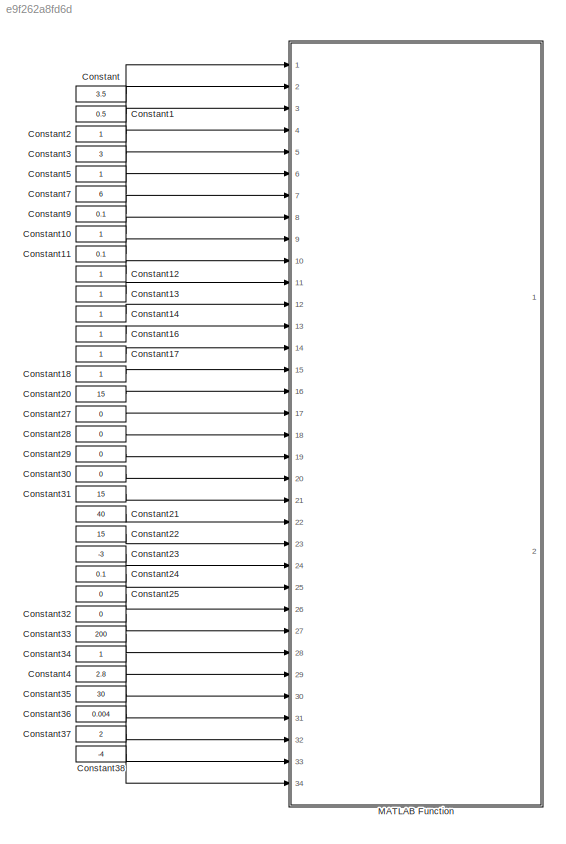
MODEL slx_e9f262a8fd6d
KIND model
CONFIG AbsTol = auto
CONFIG EnableMultiTasking = off
CONFIG FixedStep = 0.01
CONFIG MaxStep = auto
CONFIG MinStep = auto
CONFIG RelTol = 1e-3
CONFIG SampleTimeConstraint = Unconstrained
CONFIG Solver = FixedStepAuto
CONFIG SolverName = FixedStepAuto
CONFIG StartTime = 0.0
CONFIG StopTime = 10.0
BLOCK [Constant] Constant
  Value = 3.5
BLOCK [Constant] Constant1
  Value = 0.5
BLOCK [Constant] Constant10
BLOCK [Constant] Constant11
  Value = 0.1
BLOCK [Constant] Constant12
BLOCK [Constant] Constant13
BLOCK [Constant] Constant14
BLOCK [Constant] Constant16
BLOCK [Constant] Constant17
BLOCK [Constant] Constant18
BLOCK [Constant] Constant2
BLOCK [Constant] Constant20
  Value = 15
BLOCK [Constant] Constant21
  Value = 40
BLOCK [Constant] Constant22
  Value = 15
BLOCK [Constant] Constant23
  Value = -3
BLOCK [Constant] Constant24
  Value = 0.1
BLOCK [Constant] Constant25
  Value = 0
BLOCK [Constant] Constant27
  Value = 0
BLOCK [Constant] Constant28
  Value = 0
BLOCK [Constant] Constant29
  Value = 0
BLOCK [Constant] Constant3
  Value = 3
BLOCK [Constant] Constant30
  Value = 0
BLOCK [Constant] Constant31
  Value = 15
BLOCK [Constant] Constant32
  Value = 0
BLOCK [Constant] Constant33
  Value = 200
BLOCK [Constant] Constant34
BLOCK [Constant] Constant35
  Value = 30
BLOCK [Constant] Constant36
  Value = 0.004
BLOCK [Constant] Constant37
  Value = 2
BLOCK [Constant] Constant38
  Value = -4
BLOCK [Constant] Constant4
  Value = 2.8
BLOCK [Constant] Constant5
BLOCK [Constant] Constant7
  Value = 6
BLOCK [Constant] Constant9
  Value = 0.1
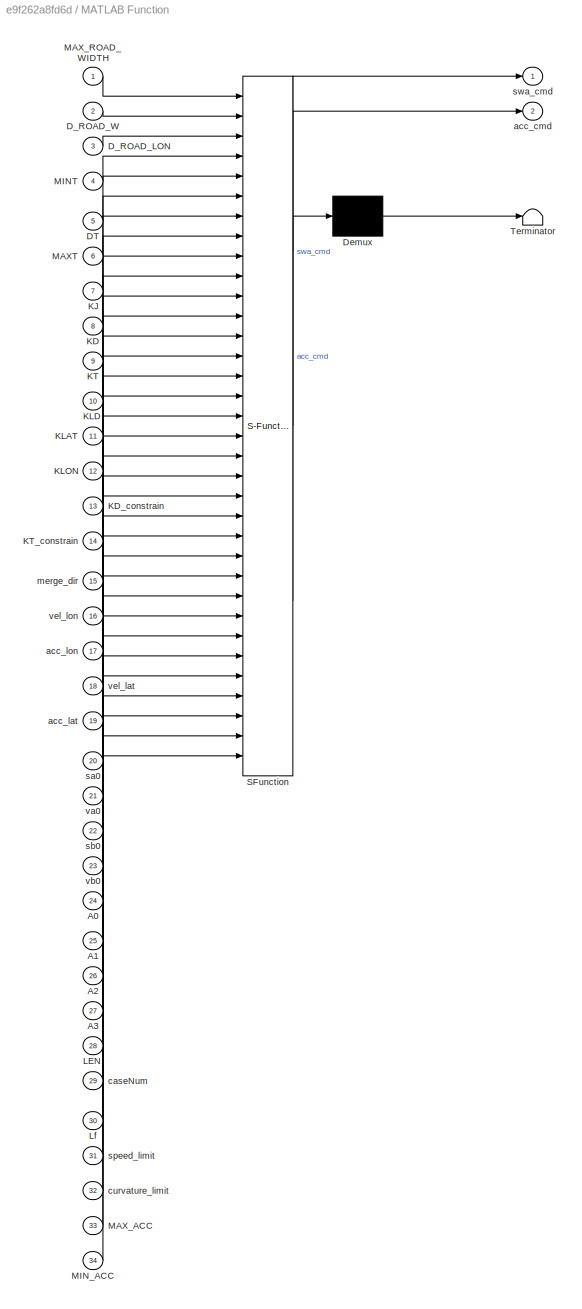
BLOCK [SubSystem] MATLAB Function
  ErrorFcn = Stateflow.Translate.translate
  PermitHierarchicalResolution = ExplicitOnly
  Ports = [34, 2]
  RequestExecContextInheritance = off
  SFBlockType = MATLAB Function
  TreatAsAtomicUnit = on
BLOCK [Demux] MATLAB Function/ Demux 
  Outputs = 1
  Ports = [1, 1]
BLOCK [S-Function] MATLAB Function/ SFunction 
  EnableBusSupport = on
  FunctionName = sf_sfun
  PortCounts = [34 3]
  Ports = [34, 3]
  SFcnIsStateOwnerBlock = off
  SFunctionDeploymentMode = off
  Tag = Stateflow S-Function 5
BLOCK [Terminator] MATLAB Function/ Terminator 
BLOCK [Inport] MATLAB Function/A0
  IconDisplay = Port number
  Port = 24
BLOCK [Inport] MATLAB Function/A1
  IconDisplay = Port number
  Port = 25
BLOCK [Inport] MATLAB Function/A2
  IconDisplay = Port number
  Port = 26
BLOCK [Inport] MATLAB Function/A3
  IconDisplay = Port number
  Port = 27
BLOCK [Inport] MATLAB Function/DT
  IconDisplay = Port number
  Port = 5
BLOCK [Inport] MATLAB Function/D_ROAD_LON
  IconDisplay = Port number
  Port = 3
BLOCK [Inport] MATLAB Function/D_ROAD_W
  IconDisplay = Port number
  Port = 2
BLOCK [Inport] MATLAB Function/KD
  IconDisplay = Port number
  Port = 8
BLOCK [Inport] MATLAB Function/KD_constrain
  IconDisplay = Port number
  Port = 13
BLOCK [Inport] MATLAB Function/KJ
  IconDisplay = Port number
  Port = 7
BLOCK [Inport] MATLAB Function/KLAT
  IconDisplay = Port number
  Port = 11
BLOCK [Inport] MATLAB Function/KLD
  IconDisplay = Port number
  Port = 10
BLOCK [Inport] MATLAB Function/KLON
  IconDisplay = Port number
  Port = 12
BLOCK [Inport] MATLAB Function/KT
  IconDisplay = Port number
  Port = 9
BLOCK [Inport] MATLAB Function/KT_constrain
  IconDisplay = Port number
  Port = 14
BLOCK [Inport] MATLAB Function/LEN
  IconDisplay = Port number
  Port = 28
BLOCK [Inport] MATLAB Function/Lf
  IconDisplay = Port number
  Port = 30
BLOCK [Inport] MATLAB Function/MAXT
  IconDisplay = Port number
  Port = 6
BLOCK [Inport] MATLAB Function/MAX_ACC
  IconDisplay = Port number
  Port = 33
BLOCK [Inport] MATLAB Function/MAX_ROAD_WIDTH
  IconDisplay = Port number
BLOCK [Inport] MATLAB Function/MINT
  IconDisplay = Port number
  Port = 4
BLOCK [Inport] MATLAB Function/MIN_ACC
  IconDisplay = Port number
  Port = 34
BLOCK [Outport] MATLAB Function/acc_cmd
  IconDisplay = Port number
  Port = 2
BLOCK [Inport] MATLAB Function/acc_lat
  IconDisplay = Port number
  Port = 19
BLOCK [Inport] MATLAB Function/acc_lon
  IconDisplay = Port number
  Port = 17
BLOCK [Inport] MATLAB Function/caseNum
  IconDisplay = Port number
  Port = 29
BLOCK [Inport] MATLAB Function/curvature_limit
  IconDisplay = Port number
  Port = 32
BLOCK [Inport] MATLAB Function/merge_dir
  IconDisplay = Port number
  Port = 15
BLOCK [Inport] MATLAB Function/sa0
  IconDisplay = Port number
  Port = 20
BLOCK [Inport] MATLAB Function/sb0
  IconDisplay = Port number
  Port = 22
BLOCK [Inport] MATLAB Function/speed_limit
  IconDisplay = Port number
  Port = 31
BLOCK [Outport] MATLAB Function/swa_cmd
  IconDisplay = Port number
BLOCK [Inport] MATLAB Function/va0
  IconDisplay = Port number
  Port = 21
BLOCK [Inport] MATLAB Function/vb0
  IconDisplay = Port number
  Port = 23
BLOCK [Inport] MATLAB Function/vel_lat
  IconDisplay = Port number
  Port = 18
BLOCK [Inport] MATLAB Function/vel_lon
  IconDisplay = Port number
  Port = 16
LINE Constant10:1 -> MATLAB Function:8
LINE Constant11:1 -> MATLAB Function:9
LINE Constant12:1 -> MATLAB Function:10
LINE Constant13:1 -> MATLAB Function:11
LINE Constant14:1 -> MATLAB Function:12
LINE Constant16:1 -> MATLAB Function:13
LINE Constant17:1 -> MATLAB Function:14
LINE Constant18:1 -> MATLAB Function:15
LINE Constant1:1 -> MATLAB Function:2
LINE Constant20:1 -> MATLAB Function:16
LINE Constant21:1 -> MATLAB Function:22
LINE Constant22:1 -> MATLAB Function:23
LINE Constant23:1 -> MATLAB Function:24
LINE Constant24:1 -> MATLAB Function:25
LINE Constant25:1 -> MATLAB Function:26
LINE Constant27:1 -> MATLAB Function:17
LINE Constant28:1 -> MATLAB Function:18
LINE Constant29:1 -> MATLAB Function:19
LINE Constant2:1 -> MATLAB Function:3
LINE Constant30:1 -> MATLAB Function:20
LINE Constant31:1 -> MATLAB Function:21
LINE Constant32:1 -> MATLAB Function:27
LINE Constant33:1 -> MATLAB Function:28
LINE Constant34:1 -> MATLAB Function:29
LINE Constant35:1 -> MATLAB Function:31
LINE Constant36:1 -> MATLAB Function:32
LINE Constant37:1 -> MATLAB Function:33
LINE Constant38:1 -> MATLAB Function:34
LINE Constant3:1 -> MATLAB Function:4
LINE Constant4:1 -> MATLAB Function:30
LINE Constant5:1 -> MATLAB Function:5
LINE Constant7:1 -> MATLAB Function:6
LINE Constant9:1 -> MATLAB Function:7
LINE Constant:1 -> MATLAB Function:1
CHART MATLAB Function states=1 transitions=1
  STATE_LABEL 'eML_blk_kernel()'
  STATE_LABEL 'SCRIPT:\n\n\n\n\n\n\n\n\n\n\n\n\n\n\n\n\n\n\n\n\n\n\n\n\nfunction [swa_cmd,acc_cmd] = dynamic_planning(MAX_ROAD_WIDTH,D_ROAD_W,D_ROAD_LON,...\n    MINT, DT, MAXT, KJ, KD, KT, KLD, KLAT, KLON, KD_constrain, KT_constrain, ...\n    merge_dir, vel_lon, acc_lon, vel_lat, acc_lat,...\n    sa0, va0, sb0, vb0,...\n    A0, A1, A2, A3,...\n    LEN, caseNum, Lf,...\n    speed_limit, curvature_limit, MAX_ACC, MIN_ACC)\n    %% this function ...<+3608ch>'
